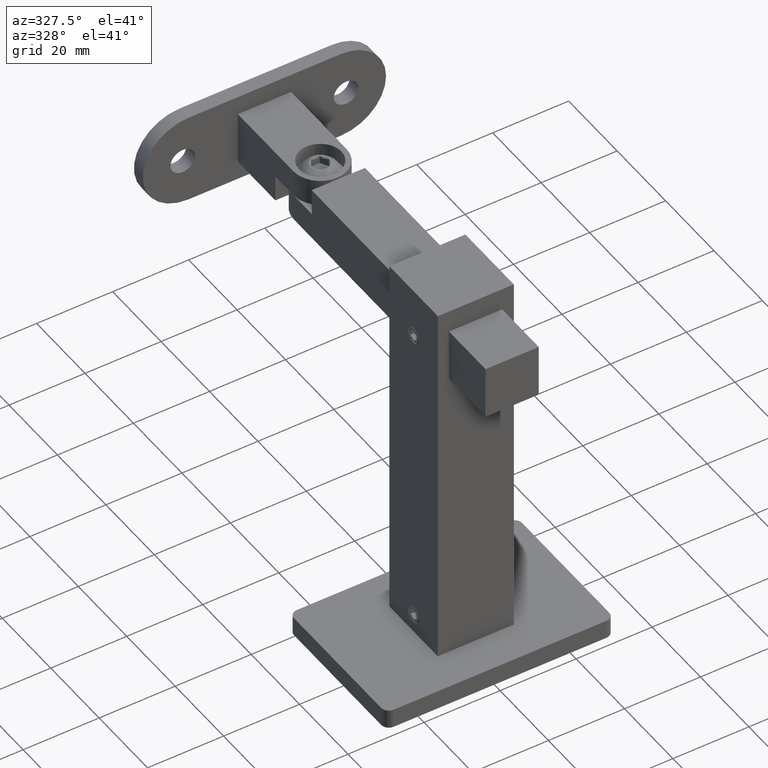
[diagram: clean part render]
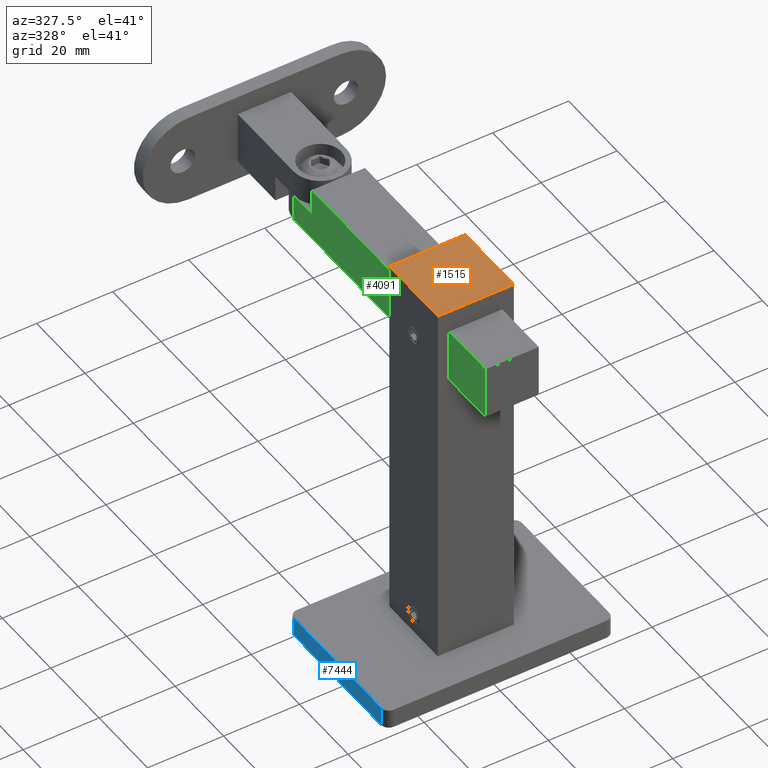
[diagram: same view with three faces highlighted in distinct colors, each labeled with its STEP entity id]
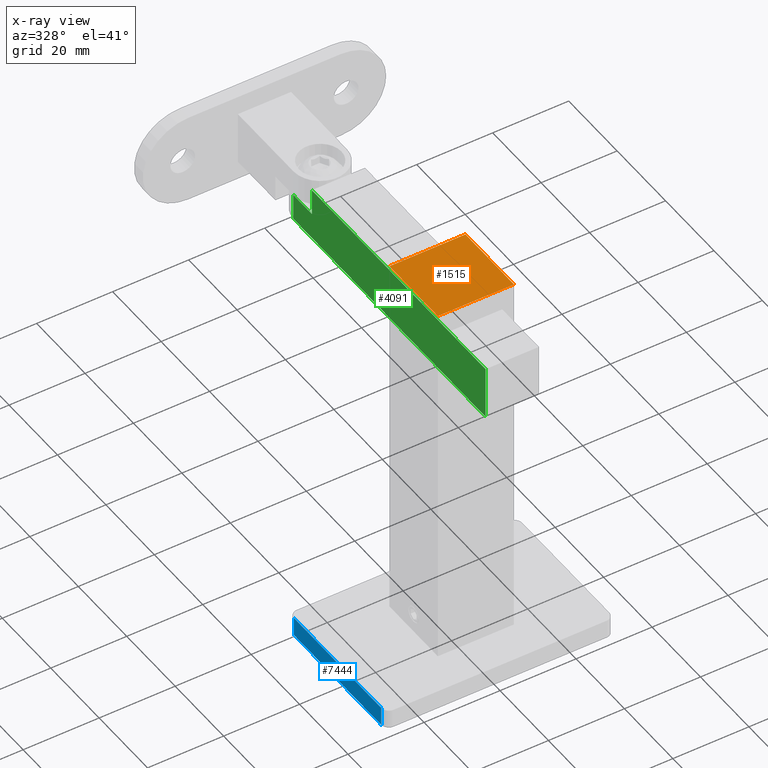
[diagram: x-ray of the same camera — body ghosted, the three highlighted faces saturated]
A machine part, auxiliary view with three faces highlighted in distinct colors.
The next image is the same camera in x-ray (body ghosted, the three faces saturated) — at least one of them is partly hidden behind the body in this view.
Their STEP definitions:

[orange] entity #1515 — the highlighted planar face has unit normal (0, 0, 1).
#1515 = ADVANCED_FACE ( 'NONE', ( #6610 ), #4422, .T. ) ;
#2246 = ORIENTED_EDGE ( 'NONE', *, *, #17159, .T. ) ;
#2649 = VERTEX_POINT ( 'NONE', #13044 ) ;
#2741 = DIRECTION ( 'NONE',  ( -1.000000000000000000, -0.000000000000000000, -0.000000000000000000 ) ) ;
#2812 = DIRECTION ( 'NONE',  ( 1.000000000000000000, 0.000000000000000000, 0.000000000000000000 ) ) ;
#4422 = PLANE ( 'NONE',  #22412 ) ;
#6610 = FACE_OUTER_BOUND ( 'NONE', #23570, .T. ) ;
#7061 = CARTESIAN_POINT ( 'NONE',  ( 0.000000000000000000, 0.000000000000000000, 50.00000000000000000 ) ) ;
#7555 = ORIENTED_EDGE ( 'NONE', *, *, #18558, .T. ) ;
#8233 = EDGE_CURVE ( 'NONE', #10346, #2649, #11850, .T. ) ;
#8505 = CARTESIAN_POINT ( 'NONE',  ( 9.999999999999996447, 10.00000000000000000, 50.00000000000000000 ) ) ;
#9418 = LINE ( 'NONE', #17863, #24802 ) ;
#9864 = CARTESIAN_POINT ( 'NONE',  ( -10.00000000000000000, -10.00000000000000000, 50.00000000000000000 ) ) ;
#10346 = VERTEX_POINT ( 'NONE', #8505 ) ;
#11850 = LINE ( 'NONE', #15501, #20523 ) ;
#12289 = VECTOR ( 'NONE', #22473, 1000.000000000000000 ) ;
#12475 = EDGE_CURVE ( 'NONE', #2649, #14036, #9418, .T. ) ;
#13044 = CARTESIAN_POINT ( 'NONE',  ( -10.00000000000000355, 10.00000000000000000, 50.00000000000000000 ) ) ;
#13696 = CARTESIAN_POINT ( 'NONE',  ( 10.00000000000000000, -10.00000000000000000, 50.00000000000000000 ) ) ;
#14036 = VERTEX_POINT ( 'NONE', #9864 ) ;
#15501 = CARTESIAN_POINT ( 'NONE',  ( -10.00000000000000355, 10.00000000000000000, 50.00000000000000000 ) ) ;
#17159 = EDGE_CURVE ( 'NONE', #21611, #10346, #22300, .T. ) ;
#17863 = CARTESIAN_POINT ( 'NONE',  ( -10.00000000000000355, 10.00000000000000000, 50.00000000000000000 ) ) ;
#18010 = DIRECTION ( 'NONE',  ( -0.000000000000000000, 0.000000000000000000, 1.000000000000000000 ) ) ;
#18463 = CARTESIAN_POINT ( 'NONE',  ( 9.999999999999996447, 10.00000000000000000, 50.00000000000000000 ) ) ;
#18558 = EDGE_CURVE ( 'NONE', #14036, #21611, #22844, .T. ) ;
#20089 = ORIENTED_EDGE ( 'NONE', *, *, #12475, .T. ) ;
#20523 = VECTOR ( 'NONE', #2741, 1000.000000000000000 ) ;
#21165 = VECTOR ( 'NONE', #26650, 1000.000000000000000 ) ;
#21611 = VERTEX_POINT ( 'NONE', #13696 ) ;
#22300 = LINE ( 'NONE', #18463, #12289 ) ;
#22412 = AXIS2_PLACEMENT_3D ( 'NONE', #7061, #18010, #2812 ) ;
#22473 = DIRECTION ( 'NONE',  ( -1.734723475976807094E-16, 1.000000000000000000, -0.000000000000000000 ) ) ;
#22844 = LINE ( 'NONE', #24468, #21165 ) ;
#23570 = EDGE_LOOP ( 'NONE', ( #2246, #24828, #20089, #7555 ) ) ;
#24468 = CARTESIAN_POINT ( 'NONE',  ( -10.00000000000000000, -10.00000000000000000, 50.00000000000000000 ) ) ;
#24802 = VECTOR ( 'NONE', #27088, 1000.000000000000000 ) ;
#24828 = ORIENTED_EDGE ( 'NONE', *, *, #8233, .T. ) ;
#26650 = DIRECTION ( 'NONE',  ( 1.000000000000000000, 0.000000000000000000, 0.000000000000000000 ) ) ;
#27088 = DIRECTION ( 'NONE',  ( 1.734723475976807094E-16, -1.000000000000000000, 0.000000000000000000 ) ) ;

[blue] entity #7444 — the highlighted planar face has unit normal (1, 0, 0).
#1084 = ORIENTED_EDGE ( 'NONE', *, *, #3095, .F. ) ;
#1275 = CARTESIAN_POINT ( 'NONE',  ( -30.00000000000000355, -17.99999999999999645, 2.500000000000000000 ) ) ;
#1500 = LINE ( 'NONE', #23308, #18225 ) ;
#2728 = VECTOR ( 'NONE', #14804, 1000.000000000000000 ) ;
#3095 = EDGE_CURVE ( 'NONE', #13486, #8484, #1500, .T. ) ;
#3785 = CARTESIAN_POINT ( 'NONE',  ( -30.00000000000000711, 18.00000000000000355, 2.500000000000000000 ) ) ;
#5707 = VECTOR ( 'NONE', #27161, 1000.000000000000000 ) ;
#5834 = CARTESIAN_POINT ( 'NONE',  ( -30.00000000000000711, 18.00000000000000355, 2.500000000000000000 ) ) ;
#6569 = EDGE_CURVE ( 'NONE', #13486, #19210, #7617, .T. ) ;
#6580 = CARTESIAN_POINT ( 'NONE',  ( -30.00000000000000355, -17.99999999999999645, -2.500000000000000000 ) ) ;
#7444 = ADVANCED_FACE ( 'NONE', ( #10900 ), #25499, .F. ) ;
#7617 = LINE ( 'NONE', #3785, #11582 ) ;
#7714 = AXIS2_PLACEMENT_3D ( 'NONE', #10711, #8781, #21704 ) ;
#8484 = VERTEX_POINT ( 'NONE', #1275 ) ;
#8666 = CARTESIAN_POINT ( 'NONE',  ( -30.00000000000000711, 18.00000000000000355, -2.500000000000000000 ) ) ;
#8781 = DIRECTION ( 'NONE',  ( 1.000000000000000000, 8.673617379884035472E-17, -0.000000000000000000 ) ) ;
#8974 = ORIENTED_EDGE ( 'NONE', *, *, #15108, .T. ) ;
#9106 = VERTEX_POINT ( 'NONE', #6580 ) ;
#10487 = CARTESIAN_POINT ( 'NONE',  ( -30.00000000000000711, 20.00000000000000355, -2.500000000000000000 ) ) ;
#10711 = CARTESIAN_POINT ( 'NONE',  ( -30.00000000000000711, 20.00000000000000355, 2.500000000000000000 ) ) ;
#10900 = FACE_OUTER_BOUND ( 'NONE', #23507, .T. ) ;
#11406 = LINE ( 'NONE', #21622, #2728 ) ;
#11582 = VECTOR ( 'NONE', #22817, 1000.000000000000000 ) ;
#12147 = EDGE_CURVE ( 'NONE', #9106, #8484, #11406, .T. ) ;
#13486 = VERTEX_POINT ( 'NONE', #5834 ) ;
#14804 = DIRECTION ( 'NONE',  ( 0.000000000000000000, -0.000000000000000000, 1.000000000000000000 ) ) ;
#15108 = EDGE_CURVE ( 'NONE', #19210, #9106, #17692, .T. ) ;
#15383 = ORIENTED_EDGE ( 'NONE', *, *, #6569, .T. ) ;
#17692 = LINE ( 'NONE', #10487, #5707 ) ;
#18225 = VECTOR ( 'NONE', #25580, 1000.000000000000000 ) ;
#19210 = VERTEX_POINT ( 'NONE', #8666 ) ;
#21622 = CARTESIAN_POINT ( 'NONE',  ( -30.00000000000000355, -17.99999999999999645, 2.500000000000000000 ) ) ;
#21704 = DIRECTION ( 'NONE',  ( -8.673617379884035472E-17, 1.000000000000000000, 0.000000000000000000 ) ) ;
#22817 = DIRECTION ( 'NONE',  ( 0.000000000000000000, 0.000000000000000000, -1.000000000000000000 ) ) ;
#23308 = CARTESIAN_POINT ( 'NONE',  ( -30.00000000000000711, 20.00000000000000355, 2.500000000000000000 ) ) ;
#23507 = EDGE_LOOP ( 'NONE', ( #8974, #26003, #1084, #15383 ) ) ;
#25499 = PLANE ( 'NONE',  #7714 ) ;
#25580 = DIRECTION ( 'NONE',  ( 8.673617379884035472E-17, -1.000000000000000000, 0.000000000000000000 ) ) ;
#26003 = ORIENTED_EDGE ( 'NONE', *, *, #12147, .T. ) ;
#27161 = DIRECTION ( 'NONE',  ( 8.673617379884035472E-17, -1.000000000000000000, 0.000000000000000000 ) ) ;

[green] entity #4091 — the highlighted planar face has unit normal (1, -0, -0).
#944 = LINE ( 'NONE', #4087, #21289 ) ;
#1117 = CARTESIAN_POINT ( 'NONE',  ( 7.000000000000002665, 90.00000000000000000, 6.999999999999998224 ) ) ;
#1133 = VECTOR ( 'NONE', #11749, 1000.000000000000000 ) ;
#1848 = CARTESIAN_POINT ( 'NONE',  ( -6.999999999999997335, 90.00000000000000000, 6.999999999999998224 ) ) ;
#2823 = EDGE_CURVE ( 'NONE', #25077, #5777, #10203, .T. ) ;
#3294 = CARTESIAN_POINT ( 'NONE',  ( 2.228857174448182142E-15, 71.79999999999999716, 6.999999999999998224 ) ) ;
#3306 = DIRECTION ( 'NONE',  ( 0.000000000000000000, 0.000000000000000000, -1.000000000000000000 ) ) ;
#3350 = ORIENTED_EDGE ( 'NONE', *, *, #18444, .F. ) ;
#3808 = LINE ( 'NONE', #1117, #14461 ) ;
#4087 = CARTESIAN_POINT ( 'NONE',  ( 2.228857174448182142E-15, 71.79999999999999716, 6.999999999999998224 ) ) ;
#4091 = ADVANCED_FACE ( 'NONE', ( #15834 ), #22616, .F. ) ;
#4790 = LINE ( 'NONE', #1848, #8489 ) ;
#5167 = VERTEX_POINT ( 'NONE', #22142 ) ;
#5692 = AXIS2_PLACEMENT_3D ( 'NONE', #20265, #3306, #9666 ) ;
#5777 = VERTEX_POINT ( 'NONE', #20511 ) ;
#5852 = DIRECTION ( 'NONE',  ( 2.715020321271283546E-17, -1.000000000000000000, 0.000000000000000000 ) ) ;
#6031 = VERTEX_POINT ( 'NONE', #10541 ) ;
#6267 = DIRECTION ( 'NONE',  ( 1.000000000000000000, 0.000000000000000000, 0.000000000000000000 ) ) ;
#7106 = EDGE_LOOP ( 'NONE', ( #10874, #25748, #16314, #3350, #19090, #19754 ) ) ;
#7792 = DIRECTION ( 'NONE',  ( -0.000000000000000000, -1.000000000000000000, -0.000000000000000000 ) ) ;
#8489 = VECTOR ( 'NONE', #27700, 1000.000000000000000 ) ;
#9666 = DIRECTION ( 'NONE',  ( -1.000000000000000000, 0.000000000000000000, -0.000000000000000000 ) ) ;
#10203 = LINE ( 'NONE', #24451, #23918 ) ;
#10541 = CARTESIAN_POINT ( 'NONE',  ( 2.025230650352836042E-15, 79.29999999999999716, 6.999999999999998224 ) ) ;
#10825 = LINE ( 'NONE', #26198, #1133 ) ;
#10874 = ORIENTED_EDGE ( 'NONE', *, *, #18534, .F. ) ;
#10877 = EDGE_CURVE ( 'NONE', #16619, #25077, #4790, .T. ) ;
#11749 = DIRECTION ( 'NONE',  ( 1.000000000000000000, -0.000000000000000000, -0.000000000000000000 ) ) ;
#11983 = CARTESIAN_POINT ( 'NONE',  ( -6.999999999999997335, 0.000000000000000000, 6.999999999999998224 ) ) ;
#13346 = CARTESIAN_POINT ( 'NONE',  ( -6.999999999999997335, 79.29999999999999716, 6.999999999999998224 ) ) ;
#14461 = VECTOR ( 'NONE', #7792, 1000.000000000000000 ) ;
#15834 = FACE_OUTER_BOUND ( 'NONE', #7106, .T. ) ;
#16314 = ORIENTED_EDGE ( 'NONE', *, *, #17845, .F. ) ;
#16619 = VERTEX_POINT ( 'NONE', #13346 ) ;
#17526 = EDGE_CURVE ( 'NONE', #19565, #5167, #944, .T. ) ;
#17845 = EDGE_CURVE ( 'NONE', #6031, #19565, #25672, .T. ) ;
#18444 = EDGE_CURVE ( 'NONE', #16619, #6031, #10825, .T. ) ;
#18534 = EDGE_CURVE ( 'NONE', #5167, #5777, #3808, .T. ) ;
#19090 = ORIENTED_EDGE ( 'NONE', *, *, #10877, .T. ) ;
#19565 = VERTEX_POINT ( 'NONE', #3294 ) ;
#19754 = ORIENTED_EDGE ( 'NONE', *, *, #2823, .T. ) ;
#19933 = VECTOR ( 'NONE', #5852, 1000.000000000000000 ) ;
#20265 = CARTESIAN_POINT ( 'NONE',  ( -6.999999999999997335, 90.00000000000000000, 6.999999999999998224 ) ) ;
#20511 = CARTESIAN_POINT ( 'NONE',  ( 7.000000000000002665, 0.000000000000000000, 6.999999999999998224 ) ) ;
#21289 = VECTOR ( 'NONE', #6267, 1000.000000000000000 ) ;
#22142 = CARTESIAN_POINT ( 'NONE',  ( 7.000000000000002665, 71.79999999999999716, 6.999999999999998224 ) ) ;
#22616 = PLANE ( 'NONE',  #5692 ) ;
#23918 = VECTOR ( 'NONE', #26555, 1000.000000000000000 ) ;
#24451 = CARTESIAN_POINT ( 'NONE',  ( -6.999999999999997335, 0.000000000000000000, 6.999999999999998224 ) ) ;
#24895 = CARTESIAN_POINT ( 'NONE',  ( 1.734723475976808672E-15, 90.00000000000000000, 6.999999999999998224 ) ) ;
#25077 = VERTEX_POINT ( 'NONE', #11983 ) ;
#25672 = LINE ( 'NONE', #24895, #19933 ) ;
#25748 = ORIENTED_EDGE ( 'NONE', *, *, #17526, .F. ) ;
#26198 = CARTESIAN_POINT ( 'NONE',  ( -7.000000000000000000, 79.29999999999999716, 6.999999999999997335 ) ) ;
#26555 = DIRECTION ( 'NONE',  ( 1.000000000000000000, 0.000000000000000000, 0.000000000000000000 ) ) ;
#27700 = DIRECTION ( 'NONE',  ( -0.000000000000000000, -1.000000000000000000, -0.000000000000000000 ) ) ;